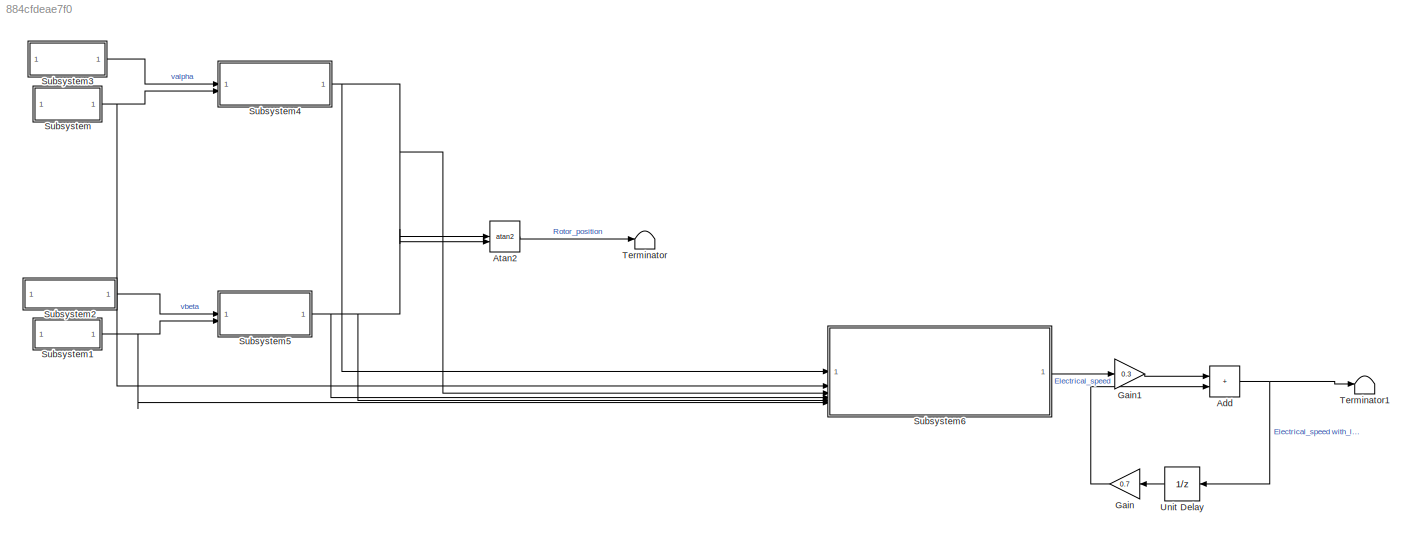
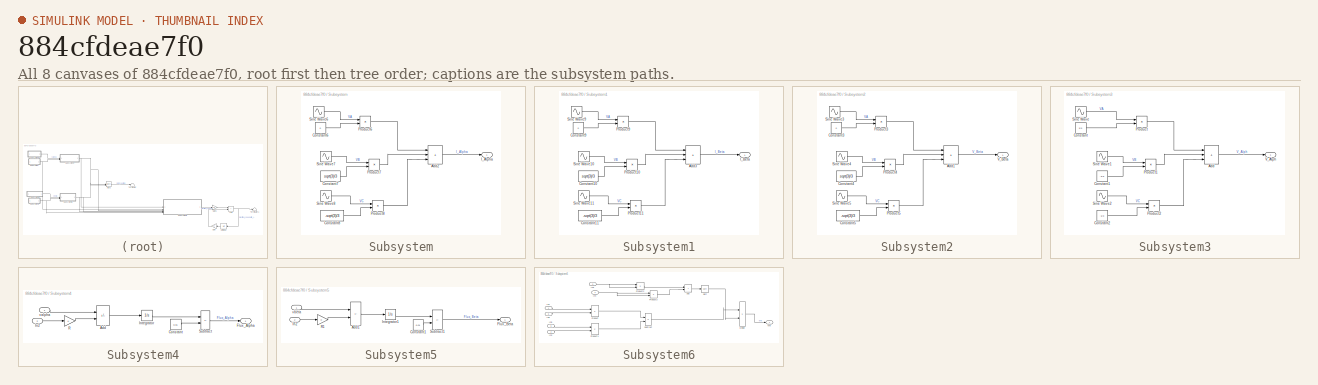
[diagram: thumbnail index - all 8 canvases of the model, root first then tree order]
MODEL slx_884cfdeae7f0
KIND model
CONFIG AbsTol = auto
CONFIG EnableMultiTasking = off
CONFIG FixedStep = auto
CONFIG MaxStep = 1e-3
CONFIG MinStep = auto
CONFIG RelTol = 1e-3
CONFIG SampleTimeConstraint = Unconstrained
CONFIG SolverName = VariableStepAuto
CONFIG StartTime = 0.0
CONFIG StopTime = 0.1
BLOCK [Sum] Add
  IconShape = rectangular
BLOCK [Trigonometry] Atan2
  Operator = atan2
BLOCK [Gain] Gain
  Gain = 0.7
BLOCK [Gain] Gain1
  Gain = 0.3
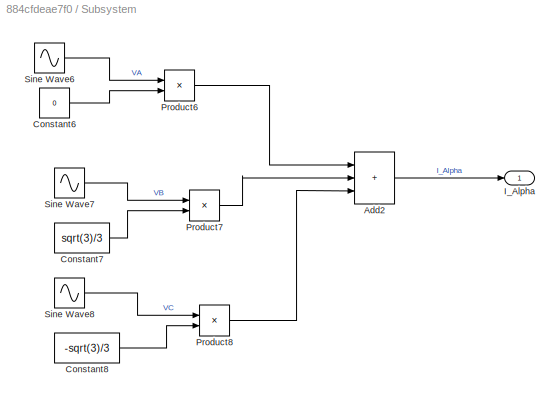
BLOCK [SubSystem] Subsystem
BLOCK [Sum] Subsystem/Add2
  IconShape = rectangular
  Inputs = +++
BLOCK [Constant] Subsystem/Constant6
  Value = 0
BLOCK [Constant] Subsystem/Constant7
  Value = sqrt(3)/3
BLOCK [Constant] Subsystem/Constant8
  Value = -sqrt(3)/3
BLOCK [Outport] Subsystem/I_Alpha
BLOCK [Product] Subsystem/Product6
BLOCK [Product] Subsystem/Product7
BLOCK [Product] Subsystem/Product8
BLOCK [Sin] Subsystem/Sine Wave6
  Amplitude = 2
  Frequency = 300
  SampleTime = 0
BLOCK [Sin] Subsystem/Sine Wave7
  Amplitude = 2
  Frequency = 300
  Phase = (2/3)*pi
  SampleTime = 0
BLOCK [Sin] Subsystem/Sine Wave8
  Amplitude = 2
  Frequency = 300
  Phase = (4/3)*pi
  SampleTime = 0
BLOCK [SubSystem] Subsystem1
BLOCK [Sum] Subsystem1/Add3
  IconShape = rectangular
  Inputs = +++
BLOCK [Constant] Subsystem1/Constant10
  Value = sqrt(3)/3
BLOCK [Constant] Subsystem1/Constant11
  Value = -sqrt(3)/3
BLOCK [Constant] Subsystem1/Constant9
  Value = 0
BLOCK [Outport] Subsystem1/I_Beta
BLOCK [Product] Subsystem1/Product10
BLOCK [Product] Subsystem1/Product11
BLOCK [Product] Subsystem1/Product9
BLOCK [Sin] Subsystem1/Sine Wave10
  Amplitude = 2
  Frequency = 300
  Phase = (2/3)*pi
  SampleTime = 0
BLOCK [Sin] Subsystem1/Sine Wave11
  Amplitude = 2
  Frequency = 300
  Phase = (4/3)*pi
  SampleTime = 0
BLOCK [Sin] Subsystem1/Sine Wave9
  Amplitude = 2
  Frequency = 300
  SampleTime = 0
BLOCK [SubSystem] Subsystem2
BLOCK [Sum] Subsystem2/Add1
  IconShape = rectangular
  Inputs = +++
BLOCK [Constant] Subsystem2/Constant3
  Value = 0
BLOCK [Constant] Subsystem2/Constant4
  Value = sqrt(3)/3
BLOCK [Constant] Subsystem2/Constant5
  Value = -sqrt(3)/3
BLOCK [Product] Subsystem2/Product3
BLOCK [Product] Subsystem2/Product4
BLOCK [Product] Subsystem2/Product5
BLOCK [Sin] Subsystem2/Sine Wave3
  Amplitude = 12
  Frequency = 300
  SampleTime = 0
BLOCK [Sin] Subsystem2/Sine Wave4
  Amplitude = 12
  Frequency = 300
  Phase = (2/3)*pi
  SampleTime = 0
BLOCK [Sin] Subsystem2/Sine Wave5
  Amplitude = 12
  Frequency = 300
  Phase = (4/3)*pi
  SampleTime = 0
BLOCK [Outport] Subsystem2/V_Beta
BLOCK [SubSystem] Subsystem3
BLOCK [Sum] Subsystem3/Add
  IconShape = rectangular
  Inputs = +++
BLOCK [Constant] Subsystem3/Constant
  Value = 2/3
BLOCK [Constant] Subsystem3/Constant1
  Value = -1/3
BLOCK [Constant] Subsystem3/Constant2
  Value = -1/3
BLOCK [Product] Subsystem3/Product
BLOCK [Product] Subsystem3/Product1
BLOCK [Product] Subsystem3/Product2
BLOCK [Sin] Subsystem3/Sine Wave
  Amplitude = 12
  Frequency = 300
  SampleTime = 0
BLOCK [Sin] Subsystem3/Sine Wave1
  Amplitude = 12
  Frequency = 300
  Phase = (2/3)*pi
  SampleTime = 0
BLOCK [Sin] Subsystem3/Sine Wave2
  Amplitude = 12
  Frequency = 300
  Phase = (4/3)*pi
  SampleTime = 0
BLOCK [Outport] Subsystem3/V_Alph
BLOCK [SubSystem] Subsystem4
BLOCK [Sum] Subsystem4/Add
  IconShape = rectangular
  Inputs = +-
BLOCK [Constant] Subsystem4/Constant
  Value = 0.01
BLOCK [Outport] Subsystem4/Flux_Alpha
BLOCK [Inport] Subsystem4/In2
  Port = 2
BLOCK [Integrator] Subsystem4/Integrator
BLOCK [Gain] Subsystem4/R
BLOCK [Sum] Subsystem4/Subtract
  IconShape = rectangular
  Inputs = +-
BLOCK [Inport] Subsystem4/valpha
BLOCK [SubSystem] Subsystem5
BLOCK [Sum] Subsystem5/Add1
  IconShape = rectangular
  Inputs = +-
BLOCK [Constant] Subsystem5/Constant1
  Value = 0.01
BLOCK [Outport] Subsystem5/Flux_Beta
BLOCK [Inport] Subsystem5/In2
  Port = 2
BLOCK [Integrator] Subsystem5/Integrator1
BLOCK [Gain] Subsystem5/R1
BLOCK [Sum] Subsystem5/Subtract1
  IconShape = rectangular
  Inputs = +-
BLOCK [Inport] Subsystem5/vbeta
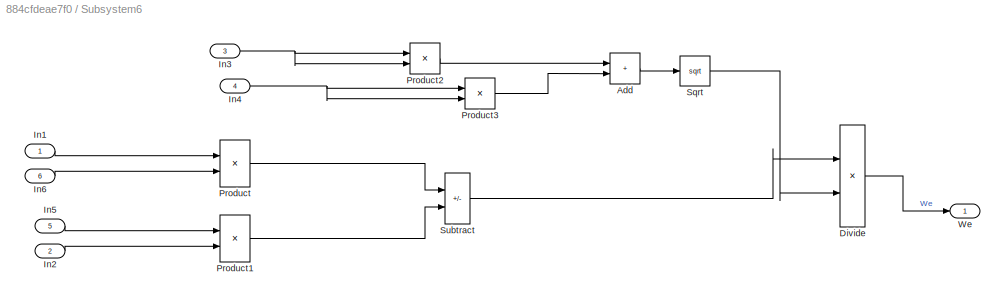
BLOCK [SubSystem] Subsystem6
BLOCK [Sum] Subsystem6/Add
  IconShape = rectangular
BLOCK [Product] Subsystem6/Divide
  Inputs = */
BLOCK [Inport] Subsystem6/In1
BLOCK [Inport] Subsystem6/In2
  Port = 2
BLOCK [Inport] Subsystem6/In3
  Port = 3
BLOCK [Inport] Subsystem6/In4
  Port = 4
BLOCK [Inport] Subsystem6/In5
  Port = 5
BLOCK [Inport] Subsystem6/In6
  Port = 6
BLOCK [Product] Subsystem6/Product
BLOCK [Product] Subsystem6/Product1
BLOCK [Product] Subsystem6/Product2
BLOCK [Product] Subsystem6/Product3
BLOCK [Sqrt] Subsystem6/Sqrt
BLOCK [Sum] Subsystem6/Subtract
  IconShape = rectangular
  Inputs = +-
BLOCK [Outport] Subsystem6/We
BLOCK [Terminator] Terminator
BLOCK [Terminator] Terminator1
BLOCK [UnitDelay] Unit Delay
  HasFrameUpgradeWarning = on
  SampleTime = -1
NET Add:1 -> Terminator1:1, Unit Delay:1
LINE Atan2:1 -> Terminator:1
LINE Gain1:1 -> Add:1
LINE Gain:1 -> Add:2
LINE Subsystem/Add2:1 -> Subsystem/I_Alpha:1
LINE Subsystem/Constant6:1 -> Subsystem/Product6:2
LINE Subsystem/Constant7:1 -> Subsystem/Product7:2
LINE Subsystem/Constant8:1 -> Subsystem/Product8:2
LINE Subsystem/Product6:1 -> Subsystem/Add2:1
LINE Subsystem/Product7:1 -> Subsystem/Add2:2
LINE Subsystem/Product8:1 -> Subsystem/Add2:3
LINE Subsystem/Sine Wave6:1 -> Subsystem/Product6:1
LINE Subsystem/Sine Wave7:1 -> Subsystem/Product7:1
LINE Subsystem/Sine Wave8:1 -> Subsystem/Product8:1
LINE Subsystem1/Add3:1 -> Subsystem1/I_Beta:1
LINE Subsystem1/Constant10:1 -> Subsystem1/Product10:2
LINE Subsystem1/Constant11:1 -> Subsystem1/Product11:2
LINE Subsystem1/Constant9:1 -> Subsystem1/Product9:2
LINE Subsystem1/Product10:1 -> Subsystem1/Add3:2
LINE Subsystem1/Product11:1 -> Subsystem1/Add3:3
LINE Subsystem1/Product9:1 -> Subsystem1/Add3:1
LINE Subsystem1/Sine Wave10:1 -> Subsystem1/Product10:1
LINE Subsystem1/Sine Wave11:1 -> Subsystem1/Product11:1
LINE Subsystem1/Sine Wave9:1 -> Subsystem1/Product9:1
NET Subsystem1:1 -> Subsystem5:2, Subsystem6:6
LINE Subsystem2/Add1:1 -> Subsystem2/V_Beta:1
LINE Subsystem2/Constant3:1 -> Subsystem2/Product3:2
LINE Subsystem2/Constant4:1 -> Subsystem2/Product4:2
LINE Subsystem2/Constant5:1 -> Subsystem2/Product5:2
LINE Subsystem2/Product3:1 -> Subsystem2/Add1:1
LINE Subsystem2/Product4:1 -> Subsystem2/Add1:2
LINE Subsystem2/Product5:1 -> Subsystem2/Add1:3
LINE Subsystem2/Sine Wave3:1 -> Subsystem2/Product3:1
LINE Subsystem2/Sine Wave4:1 -> Subsystem2/Product4:1
LINE Subsystem2/Sine Wave5:1 -> Subsystem2/Product5:1
LINE Subsystem2:1 -> Subsystem5:1
LINE Subsystem3/Add:1 -> Subsystem3/V_Alph:1
LINE Subsystem3/Constant1:1 -> Subsystem3/Product1:2
LINE Subsystem3/Constant2:1 -> Subsystem3/Product2:2
LINE Subsystem3/Constant:1 -> Subsystem3/Product:2
LINE Subsystem3/Product1:1 -> Subsystem3/Add:2
LINE Subsystem3/Product2:1 -> Subsystem3/Add:3
LINE Subsystem3/Product:1 -> Subsystem3/Add:1
LINE Subsystem3/Sine Wave1:1 -> Subsystem3/Product1:1
LINE Subsystem3/Sine Wave2:1 -> Subsystem3/Product2:1
LINE Subsystem3/Sine Wave:1 -> Subsystem3/Product:1
LINE Subsystem3:1 -> Subsystem4:1
LINE Subsystem4/Add:1 -> Subsystem4/Integrator:1
LINE Subsystem4/Constant:1 -> Subsystem4/Subtract:2
LINE Subsystem4/In2:1 -> Subsystem4/R:1
LINE Subsystem4/Integrator:1 -> Subsystem4/Subtract:1
LINE Subsystem4/R:1 -> Subsystem4/Add:2
LINE Subsystem4/Subtract:1 -> Subsystem4/Flux_Alpha:1
LINE Subsystem4/valpha:1 -> Subsystem4/Add:1
NET Subsystem4:1 -> Atan2:2, Subsystem6:1, Subsystem6:3
LINE Subsystem5/Add1:1 -> Subsystem5/Integrator1:1
LINE Subsystem5/Constant1:1 -> Subsystem5/Subtract1:2
LINE Subsystem5/In2:1 -> Subsystem5/R1:1
LINE Subsystem5/Integrator1:1 -> Subsystem5/Subtract1:1
LINE Subsystem5/R1:1 -> Subsystem5/Add1:2
LINE Subsystem5/Subtract1:1 -> Subsystem5/Flux_Beta:1
LINE Subsystem5/vbeta:1 -> Subsystem5/Add1:1
NET Subsystem5:1 -> Atan2:1, Subsystem6:4, Subsystem6:5
LINE Subsystem6/Add:1 -> Subsystem6/Sqrt:1
LINE Subsystem6/Divide:1 -> Subsystem6/We:1
LINE Subsystem6/In1:1 -> Subsystem6/Product:1
LINE Subsystem6/In2:1 -> Subsystem6/Product1:2
NET Subsystem6/In3:1 -> Subsystem6/Product2:1, Subsystem6/Product2:2
NET Subsystem6/In4:1 -> Subsystem6/Product3:1, Subsystem6/Product3:2
LINE Subsystem6/In5:1 -> Subsystem6/Product1:1
LINE Subsystem6/In6:1 -> Subsystem6/Product:2
LINE Subsystem6/Product1:1 -> Subsystem6/Subtract:2
LINE Subsystem6/Product2:1 -> Subsystem6/Add:1
LINE Subsystem6/Product3:1 -> Subsystem6/Add:2
LINE Subsystem6/Product:1 -> Subsystem6/Subtract:1
LINE Subsystem6/Sqrt:1 -> Subsystem6/Divide:2
LINE Subsystem6/Subtract:1 -> Subsystem6/Divide:1
LINE Subsystem6:1 -> Gain1:1
NET Subsystem:1 -> Subsystem4:2, Subsystem6:2
LINE Unit Delay:1 -> Gain:1
note: NET lines group one-source signal fan-out (src -> all destinations, sorted); 1:1 wires keep LINE
